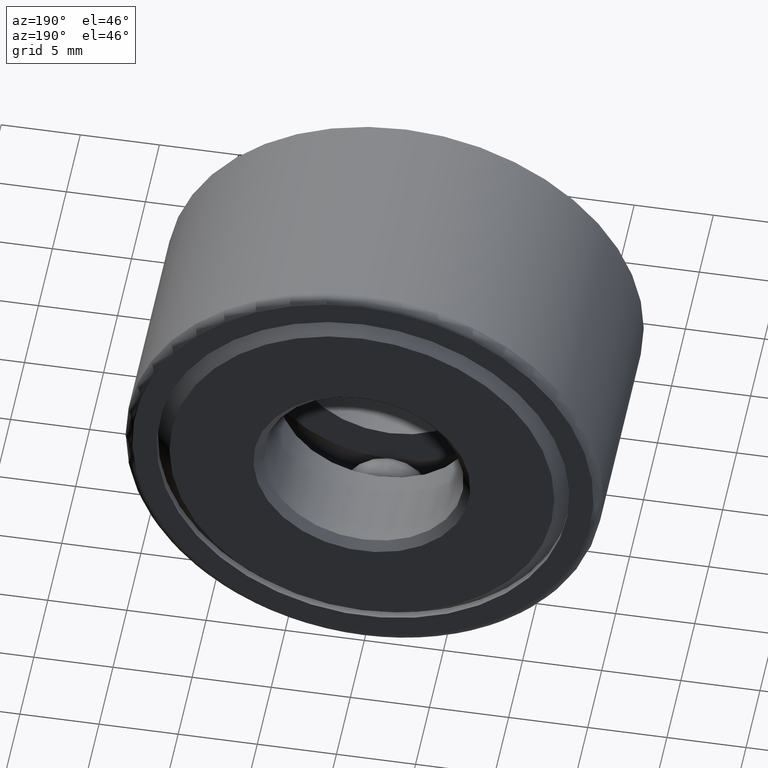
[diagram: clean part render]
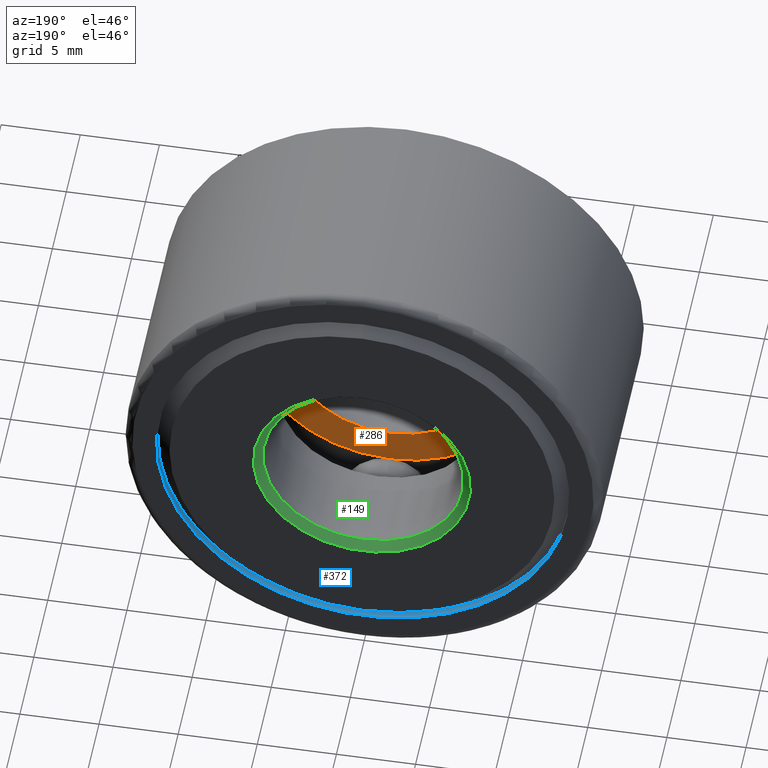
[diagram: same view with three faces highlighted in distinct colors, each labeled with its STEP entity id]
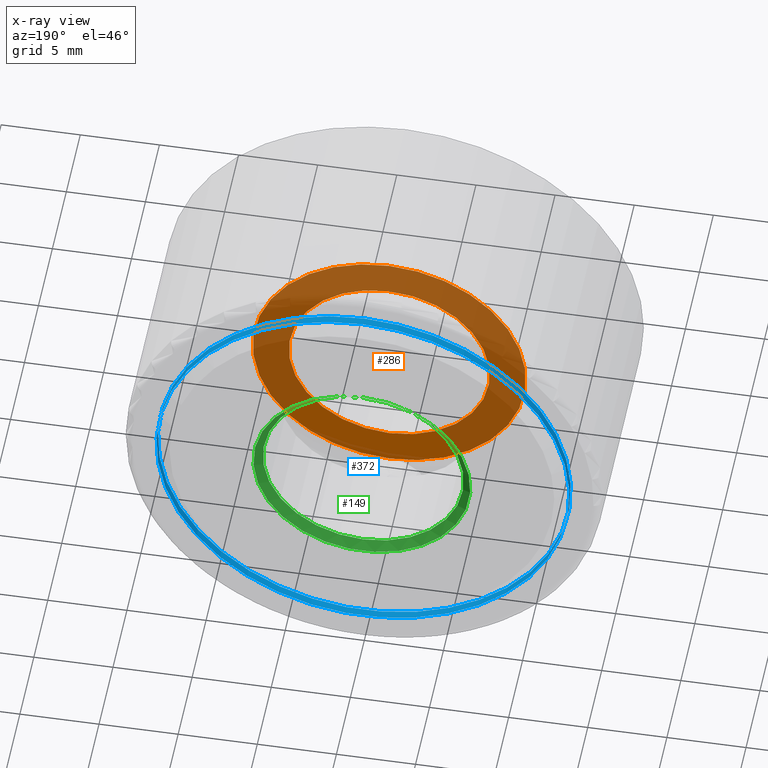
[diagram: x-ray of the same camera — body ghosted, the three highlighted faces saturated]
A machine part, auxiliary view with three faces highlighted in distinct colors.
The next image is the same camera in x-ray (body ghosted, the three faces saturated) — at least one of them is partly hidden behind the body in this view.
Their STEP definitions:

[orange] entity #286 — the highlighted planar face has unit normal (0, -1, 0).
#16 = EDGE_LOOP ( 'NONE', ( #344 ) ) ;
#44 = EDGE_CURVE ( 'NONE', #505, #505, #60, .T. ) ;
#60 = CIRCLE ( 'NONE', #334, 0.3397500000000001100 ) ;
#63 = DIRECTION ( 'NONE',  ( 0.0000000000000000000, 0.0000000000000000000, 1.000000000000000000 ) ) ;
#67 = CARTESIAN_POINT ( 'NONE',  ( 0.0000000000000000000, 0.2375000000000005400, 0.0000000000000000000 ) ) ;
#86 = CIRCLE ( 'NONE', #430, 0.2499999999999998100 ) ;
#152 = EDGE_CURVE ( 'NONE', #391, #391, #86, .T. ) ;
#163 = DIRECTION ( 'NONE',  ( 0.0000000000000000000, -1.000000000000000000, 0.0000000000000000000 ) ) ;
#167 = DIRECTION ( 'NONE',  ( -0.0000000000000000000, 1.000000000000000000, -0.0000000000000000000 ) ) ;
#191 = FACE_OUTER_BOUND ( 'NONE', #16, .T. ) ;
#211 = FACE_BOUND ( 'NONE', #336, .T. ) ;
#253 = CARTESIAN_POINT ( 'NONE',  ( -1.807281054304351700E-016, 0.2375000000000005200, 0.0000000000000000000 ) ) ;
#274 = CARTESIAN_POINT ( 'NONE',  ( 0.0000000000000000000, 0.2375000000000004600, 0.3397500000000001100 ) ) ;
#286 = ADVANCED_FACE ( 'NONE', ( #211, #191 ), #528, .F. ) ;
#328 = AXIS2_PLACEMENT_3D ( 'NONE', #253, #163, #585 ) ;
#333 = CARTESIAN_POINT ( 'NONE',  ( 0.0000000000000000000, 0.2375000000000004600, 0.0000000000000000000 ) ) ;
#334 = AXIS2_PLACEMENT_3D ( 'NONE', #333, #522, #605 ) ;
#336 = EDGE_LOOP ( 'NONE', ( #341 ) ) ;
#341 = ORIENTED_EDGE ( 'NONE', *, *, #152, .F. ) ;
#344 = ORIENTED_EDGE ( 'NONE', *, *, #44, .T. ) ;
#369 = CARTESIAN_POINT ( 'NONE',  ( 0.0000000000000000000, 0.2375000000000005400, 0.2499999999999998100 ) ) ;
#391 = VERTEX_POINT ( 'NONE', #369 ) ;
#430 = AXIS2_PLACEMENT_3D ( 'NONE', #67, #167, #63 ) ;
#505 = VERTEX_POINT ( 'NONE', #274 ) ;
#522 = DIRECTION ( 'NONE',  ( -0.0000000000000000000, 1.000000000000000000, -0.0000000000000000000 ) ) ;
#528 = PLANE ( 'NONE',  #328 ) ;
#585 = DIRECTION ( 'NONE',  ( 0.0000000000000000000, -0.0000000000000000000, -1.000000000000000000 ) ) ;
#605 = DIRECTION ( 'NONE',  ( 0.0000000000000000000, 0.0000000000000000000, 1.000000000000000000 ) ) ;

[blue] entity #372 — the highlighted cylindrical surface (bore or boss wall) has radius 13.0493 mm, axis along (-0, 1, -0).
#22 = CARTESIAN_POINT ( 'NONE',  ( 0.0000000000000000000, 0.0000000000000000000, 0.0000000000000000000 ) ) ;
#57 = ORIENTED_EDGE ( 'NONE', *, *, #604, .F. ) ;
#71 = VERTEX_POINT ( 'NONE', #464 ) ;
#78 = CARTESIAN_POINT ( 'NONE',  ( 0.0000000000000000000, 0.5899999999999999700, 0.0000000000000000000 ) ) ;
#108 = EDGE_LOOP ( 'NONE', ( #57 ) ) ;
#126 = CIRCLE ( 'NONE', #128, 0.5137500000000004800 ) ;
#128 = AXIS2_PLACEMENT_3D ( 'NONE', #444, #544, #219 ) ;
#130 = DIRECTION ( 'NONE',  ( 0.0000000000000000000, 0.0000000000000000000, 1.000000000000000000 ) ) ;
#184 = FACE_OUTER_BOUND ( 'NONE', #108, .T. ) ;
#219 = DIRECTION ( 'NONE',  ( 0.0000000000000000000, 0.0000000000000000000, 1.000000000000000000 ) ) ;
#232 = CYLINDRICAL_SURFACE ( 'NONE', #501, 0.5137500000000004800 ) ;
#243 = CARTESIAN_POINT ( 'NONE',  ( 0.0000000000000000000, 0.6099999999999998800, 0.5137500000000004800 ) ) ;
#309 = CIRCLE ( 'NONE', #312, 0.5137500000000004800 ) ;
#312 = AXIS2_PLACEMENT_3D ( 'NONE', #78, #364, #130 ) ;
#338 = VERTEX_POINT ( 'NONE', #243 ) ;
#364 = DIRECTION ( 'NONE',  ( -0.0000000000000000000, 1.000000000000000000, -0.0000000000000000000 ) ) ;
#372 = ADVANCED_FACE ( 'NONE', ( #184, #489 ), #232, .F. ) ;
#393 = EDGE_CURVE ( 'NONE', #338, #338, #126, .T. ) ;
#409 = ORIENTED_EDGE ( 'NONE', *, *, #393, .T. ) ;
#433 = EDGE_LOOP ( 'NONE', ( #409 ) ) ;
#444 = CARTESIAN_POINT ( 'NONE',  ( 0.0000000000000000000, 0.6099999999999998800, 0.0000000000000000000 ) ) ;
#464 = CARTESIAN_POINT ( 'NONE',  ( 0.0000000000000000000, 0.5899999999999999700, 0.5137500000000004800 ) ) ;
#489 = FACE_OUTER_BOUND ( 'NONE', #433, .T. ) ;
#501 = AXIS2_PLACEMENT_3D ( 'NONE', #22, #536, #578 ) ;
#536 = DIRECTION ( 'NONE',  ( -0.0000000000000000000, 1.000000000000000000, -0.0000000000000000000 ) ) ;
#544 = DIRECTION ( 'NONE',  ( -0.0000000000000000000, 1.000000000000000000, -0.0000000000000000000 ) ) ;
#578 = DIRECTION ( 'NONE',  ( 0.0000000000000000000, 0.0000000000000000000, 1.000000000000000000 ) ) ;
#604 = EDGE_CURVE ( 'NONE', #71, #71, #309, .T. ) ;

[green] entity #149 — the highlighted conical surface has half-angle 45 deg.
#2 = EDGE_CURVE ( 'NONE', #15, #15, #521, .T. ) ;
#6 = DIRECTION ( 'NONE',  ( -0.0000000000000000000, 1.000000000000000000, -0.0000000000000000000 ) ) ;
#8 = EDGE_CURVE ( 'NONE', #177, #177, #534, .T. ) ;
#15 = VERTEX_POINT ( 'NONE', #592 ) ;
#35 = AXIS2_PLACEMENT_3D ( 'NONE', #508, #235, #204 ) ;
#51 = CONICAL_SURFACE ( 'NONE', #493, 0.2499999999999998100, 0.7853981633974517200 ) ;
#69 = AXIS2_PLACEMENT_3D ( 'NONE', #526, #252, #384 ) ;
#149 = ADVANCED_FACE ( 'NONE', ( #456, #426 ), #51, .F. ) ;
#177 = VERTEX_POINT ( 'NONE', #506 ) ;
#204 = DIRECTION ( 'NONE',  ( 0.0000000000000000000, 0.0000000000000000000, 1.000000000000000000 ) ) ;
#235 = DIRECTION ( 'NONE',  ( -0.0000000000000000000, 1.000000000000000000, -0.0000000000000000000 ) ) ;
#252 = DIRECTION ( 'NONE',  ( -0.0000000000000000000, 1.000000000000000000, -0.0000000000000000000 ) ) ;
#308 = EDGE_LOOP ( 'NONE', ( #487 ) ) ;
#321 = ORIENTED_EDGE ( 'NONE', *, *, #2, .F. ) ;
#384 = DIRECTION ( 'NONE',  ( 0.0000000000000000000, 0.0000000000000000000, 1.000000000000000000 ) ) ;
#412 = EDGE_LOOP ( 'NONE', ( #321 ) ) ;
#426 = FACE_BOUND ( 'NONE', #412, .T. ) ;
#456 = FACE_OUTER_BOUND ( 'NONE', #308, .T. ) ;
#481 = DIRECTION ( 'NONE',  ( 0.0000000000000000000, 0.0000000000000000000, 1.000000000000000000 ) ) ;
#487 = ORIENTED_EDGE ( 'NONE', *, *, #8, .T. ) ;
#493 = AXIS2_PLACEMENT_3D ( 'NONE', #564, #6, #481 ) ;
#506 = CARTESIAN_POINT ( 'NONE',  ( 0.0000000000000000000, 0.6250000000000005600, 0.2699999999999995700 ) ) ;
#508 = CARTESIAN_POINT ( 'NONE',  ( 0.0000000000000000000, 0.6050000000000008700, 0.0000000000000000000 ) ) ;
#521 = CIRCLE ( 'NONE', #35, 0.2499999999999998100 ) ;
#526 = CARTESIAN_POINT ( 'NONE',  ( 0.0000000000000000000, 0.6250000000000005600, 0.0000000000000000000 ) ) ;
#534 = CIRCLE ( 'NONE', #69, 0.2699999999999995700 ) ;
#564 = CARTESIAN_POINT ( 'NONE',  ( 0.0000000000000000000, 0.6050000000000008700, 0.0000000000000000000 ) ) ;
#592 = CARTESIAN_POINT ( 'NONE',  ( 0.0000000000000000000, 0.6050000000000008700, 0.2499999999999998100 ) ) ;